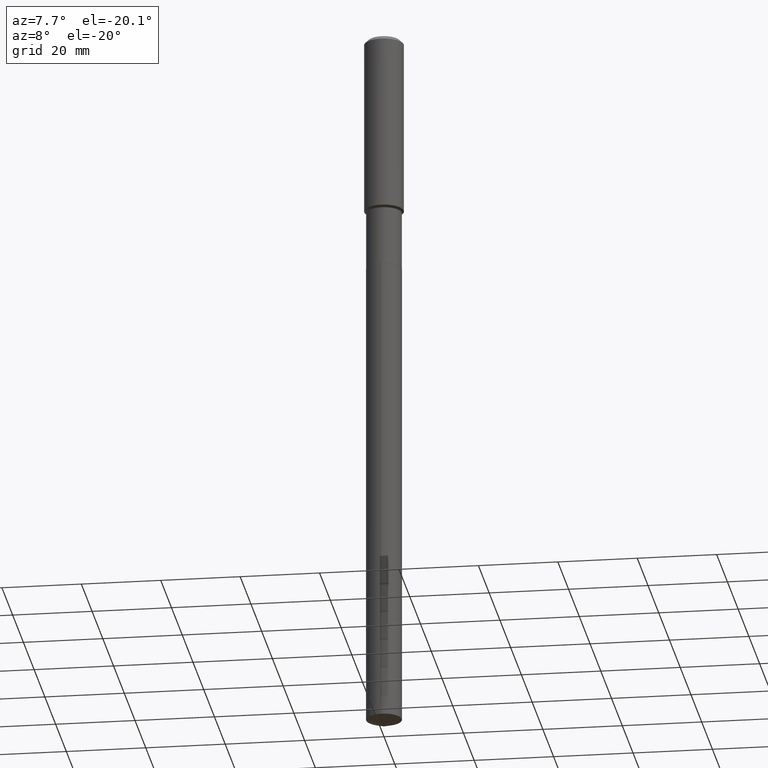
[diagram: clean part render]
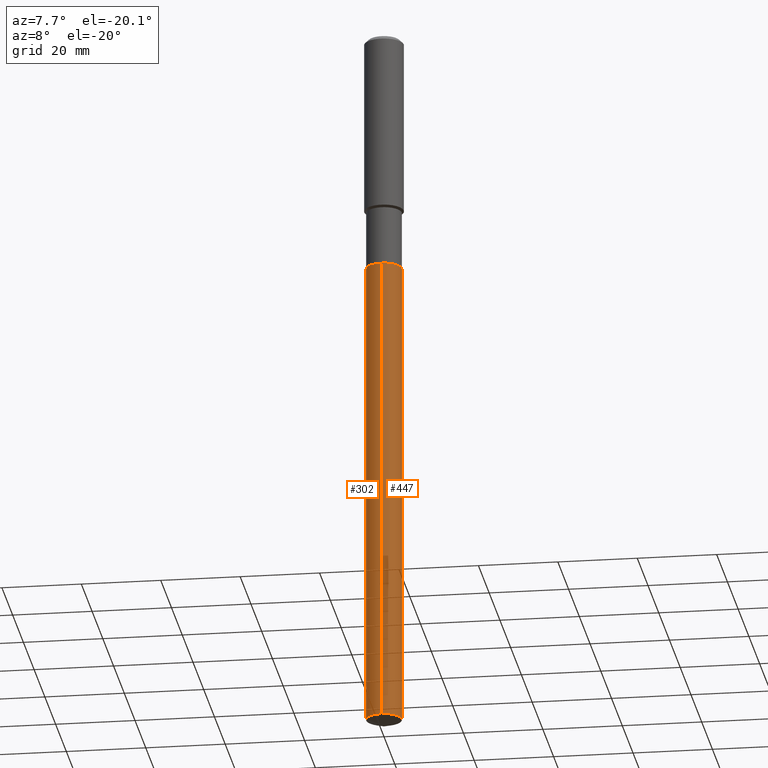
[diagram: same view with one multi-face feature highlighted, each face labeled with its STEP entity id]
A machine part, auxiliary view. The highlighted faces form ONE feature: a constant-radius fillet chain: 2 tangent blend faces with common blend radius 4.4996 mm. The faces share edges in the B-rep.
Their STEP definitions:
[1] entity #447 (Cylinder):
#2 = CIRCLE ( 'NONE', #179, 0.1771500000000000019 ) ;
#34 = EDGE_CURVE ( 'NONE', #431, #470, #177, .T. ) ;
#35 = DIRECTION ( 'NONE',  ( -2.445443105492104363E-29, 3.491518143698360892E-15, 1.000000000000000000 ) ) ;
#71 = CARTESIAN_POINT ( 'NONE',  ( 1.735101500038385623E-28, -2.477299738433002409E-14, -7.095218759244812823 ) ) ;
#76 = AXIS2_PLACEMENT_3D ( 'NONE', #83, #377, #448 ) ;
#83 = CARTESIAN_POINT ( 'NONE',  ( 5.823639415049284810E-29, -8.314613660321066941E-15, -2.381399999999999739 ) ) ;
#131 = VECTOR ( 'NONE', #327, 39.37007874015748143 ) ;
#162 = EDGE_LOOP ( 'NONE', ( #216, #465, #303, #164 ) ) ;
#164 = ORIENTED_EDGE ( 'NONE', *, *, #34, .F. ) ;
#173 = DIRECTION ( 'NONE',  ( -6.982962677686265922E-15, -1.000000000000000000, 6.168440290520492448E-15 ) ) ;
#177 = LINE ( 'NONE', #221, #131 ) ;
#179 = AXIS2_PLACEMENT_3D ( 'NONE', #71, #326, #173 ) ;
#180 = VECTOR ( 'NONE', #35, 39.37007874015748143 ) ;
#183 = LINE ( 'NONE', #373, #180 ) ;
#195 = VERTEX_POINT ( 'NONE', #464 ) ;
#216 = ORIENTED_EDGE ( 'NONE', *, *, #348, .T. ) ;
#221 = CARTESIAN_POINT ( 'NONE',  ( -1.237031838352063821E-15, -0.1771500000000083008, -2.381399999999999295 ) ) ;
#288 = CARTESIAN_POINT ( 'NONE',  ( 1.258726456399191831E-15, 0.1771499999999917030, -2.381400000000000627 ) ) ;
#289 = EDGE_CURVE ( 'NONE', #470, #430, #419, .T. ) ;
#300 = CYLINDRICAL_SURFACE ( 'NONE', #76, 0.1771500000000000019 ) ;
#303 = ORIENTED_EDGE ( 'NONE', *, *, #289, .F. ) ;
#326 = DIRECTION ( 'NONE',  ( -2.445443105492104363E-29, 3.491518143698360498E-15, 1.000000000000000000 ) ) ;
#327 = DIRECTION ( 'NONE',  ( -2.445443105492104363E-29, 3.491518143698360892E-15, 1.000000000000000000 ) ) ;
#348 = EDGE_CURVE ( 'NONE', #431, #195, #2, .T. ) ;
#350 = CARTESIAN_POINT ( 'NONE',  ( -1.237031838352063821E-15, -0.1771500000000083008, -2.381399999999999295 ) ) ;
#373 = CARTESIAN_POINT ( 'NONE',  ( 1.258726456399075671E-15, 0.1771499999999917030, -2.381400000000000627 ) ) ;
#377 = DIRECTION ( 'NONE',  ( -2.445443105492104363E-29, 3.491518143698360498E-15, 1.000000000000000000 ) ) ;
#405 = FACE_OUTER_BOUND ( 'NONE', #162, .T. ) ;
#419 = CIRCLE ( 'NONE', #435, 0.1771500000000000019 ) ;
#430 = VERTEX_POINT ( 'NONE', #288 ) ;
#431 = VERTEX_POINT ( 'NONE', #445 ) ;
#435 = AXIS2_PLACEMENT_3D ( 'NONE', #442, #439, #436 ) ;
#436 = DIRECTION ( 'NONE',  ( -6.982962677686265922E-15, -1.000000000000000000, 3.084220145260246224E-15 ) ) ;
#439 = DIRECTION ( 'NONE',  ( -2.445443105492104363E-29, 3.491518143698360498E-15, 1.000000000000000000 ) ) ;
#442 = CARTESIAN_POINT ( 'NONE',  ( 5.823639415049284810E-29, -8.314613660321066941E-15, -2.381399999999999739 ) ) ;
#445 = CARTESIAN_POINT ( 'NONE',  ( -1.237031838351948450E-15, -0.1771500000000247321, -7.095218759244811935 ) ) ;
#447 = ADVANCED_FACE ( 'NONE', ( #405 ), #300, .T. ) ;
#448 = DIRECTION ( 'NONE',  ( -6.982962677686265922E-15, -1.000000000000000000, 3.084220145260246224E-15 ) ) ;
#462 = EDGE_CURVE ( 'NONE', #195, #430, #183, .T. ) ;
#464 = CARTESIAN_POINT ( 'NONE',  ( 1.258726456399190845E-15, 0.1771499999999752439, -7.095218759244813711 ) ) ;
#465 = ORIENTED_EDGE ( 'NONE', *, *, #462, .T. ) ;
#470 = VERTEX_POINT ( 'NONE', #350 ) ;
[2] entity #302 (Cylinder):
#21 = ORIENTED_EDGE ( 'NONE', *, *, #198, .F. ) ;
#23 = ORIENTED_EDGE ( 'NONE', *, *, #462, .F. ) ;
#26 = ORIENTED_EDGE ( 'NONE', *, *, #34, .T. ) ;
#34 = EDGE_CURVE ( 'NONE', #431, #470, #177, .T. ) ;
#35 = DIRECTION ( 'NONE',  ( -2.445443105492104363E-29, 3.491518143698360892E-15, 1.000000000000000000 ) ) ;
#52 = CARTESIAN_POINT ( 'NONE',  ( 5.823639415049284810E-29, -8.314613660321066941E-15, -2.381399999999999739 ) ) ;
#107 = FACE_OUTER_BOUND ( 'NONE', #325, .T. ) ;
#122 = CIRCLE ( 'NONE', #295, 0.1771500000000000019 ) ;
#130 = ORIENTED_EDGE ( 'NONE', *, *, #414, .T. ) ;
#131 = VECTOR ( 'NONE', #327, 39.37007874015748143 ) ;
#158 = DIRECTION ( 'NONE',  ( -6.982962677686265922E-15, -1.000000000000000000, 3.084220145260246224E-15 ) ) ;
#165 = DIRECTION ( 'NONE',  ( -2.445443105492104363E-29, 3.491518143698360498E-15, 1.000000000000000000 ) ) ;
#176 = CARTESIAN_POINT ( 'NONE',  ( 1.735101500038385623E-28, -2.477299738433002409E-14, -7.095218759244812823 ) ) ;
#177 = LINE ( 'NONE', #221, #131 ) ;
#180 = VECTOR ( 'NONE', #35, 39.37007874015748143 ) ;
#183 = LINE ( 'NONE', #373, #180 ) ;
#195 = VERTEX_POINT ( 'NONE', #464 ) ;
#196 = CIRCLE ( 'NONE', #389, 0.1771500000000000019 ) ;
#198 = EDGE_CURVE ( 'NONE', #430, #470, #122, .T. ) ;
#212 = CARTESIAN_POINT ( 'NONE',  ( 5.823639415049284810E-29, -8.314613660321066941E-15, -2.381399999999999739 ) ) ;
#221 = CARTESIAN_POINT ( 'NONE',  ( -1.237031838352063821E-15, -0.1771500000000083008, -2.381399999999999295 ) ) ;
#246 = DIRECTION ( 'NONE',  ( -6.982962677686265922E-15, -1.000000000000000000, 6.168440290520492448E-15 ) ) ;
#255 = DIRECTION ( 'NONE',  ( -6.982962677686265922E-15, -1.000000000000000000, 3.084220145260246224E-15 ) ) ;
#264 = DIRECTION ( 'NONE',  ( -2.445443105492104363E-29, 3.491518143698360498E-15, 1.000000000000000000 ) ) ;
#276 = CYLINDRICAL_SURFACE ( 'NONE', #427, 0.1771500000000000019 ) ;
#288 = CARTESIAN_POINT ( 'NONE',  ( 1.258726456399191831E-15, 0.1771499999999917030, -2.381400000000000627 ) ) ;
#295 = AXIS2_PLACEMENT_3D ( 'NONE', #52, #264, #158 ) ;
#302 = ADVANCED_FACE ( 'NONE', ( #107 ), #276, .T. ) ;
#325 = EDGE_LOOP ( 'NONE', ( #23, #130, #26, #21 ) ) ;
#327 = DIRECTION ( 'NONE',  ( -2.445443105492104363E-29, 3.491518143698360892E-15, 1.000000000000000000 ) ) ;
#350 = CARTESIAN_POINT ( 'NONE',  ( -1.237031838352063821E-15, -0.1771500000000083008, -2.381399999999999295 ) ) ;
#363 = DIRECTION ( 'NONE',  ( -2.445443105492104363E-29, 3.491518143698360498E-15, 1.000000000000000000 ) ) ;
#373 = CARTESIAN_POINT ( 'NONE',  ( 1.258726456399075671E-15, 0.1771499999999917030, -2.381400000000000627 ) ) ;
#389 = AXIS2_PLACEMENT_3D ( 'NONE', #176, #165, #246 ) ;
#414 = EDGE_CURVE ( 'NONE', #195, #431, #196, .T. ) ;
#427 = AXIS2_PLACEMENT_3D ( 'NONE', #212, #363, #255 ) ;
#430 = VERTEX_POINT ( 'NONE', #288 ) ;
#431 = VERTEX_POINT ( 'NONE', #445 ) ;
#445 = CARTESIAN_POINT ( 'NONE',  ( -1.237031838351948450E-15, -0.1771500000000247321, -7.095218759244811935 ) ) ;
#462 = EDGE_CURVE ( 'NONE', #195, #430, #183, .T. ) ;
#464 = CARTESIAN_POINT ( 'NONE',  ( 1.258726456399190845E-15, 0.1771499999999752439, -7.095218759244813711 ) ) ;
#470 = VERTEX_POINT ( 'NONE', #350 ) ;